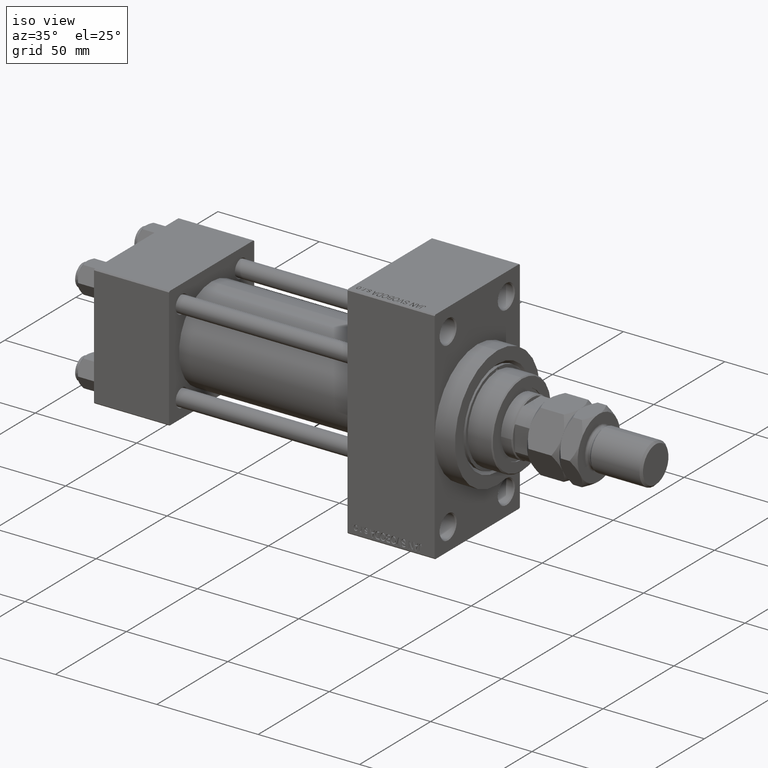
[diagram: clean part render]
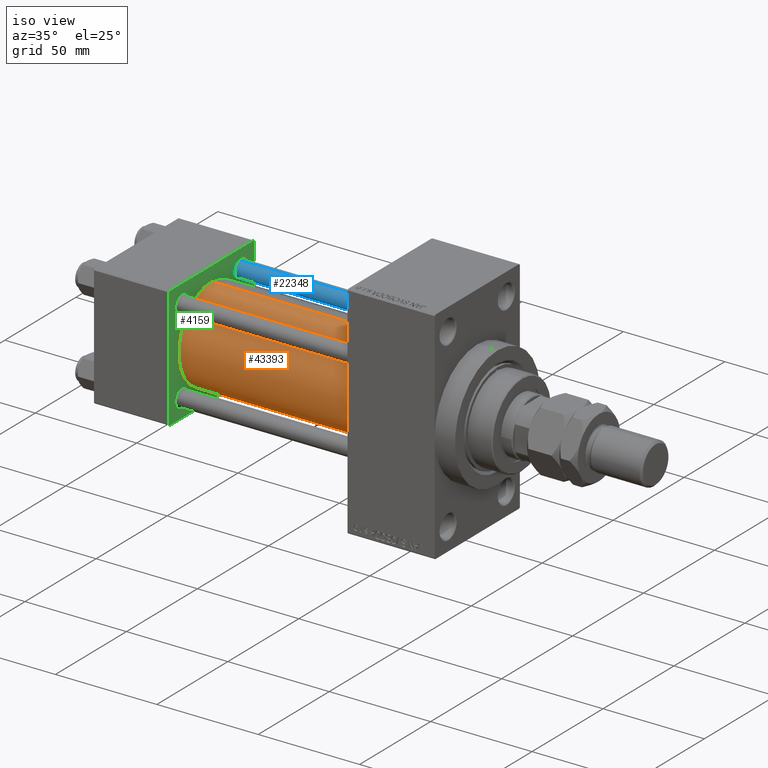
[diagram: same view with three faces highlighted in distinct colors, each labeled with its STEP entity id]
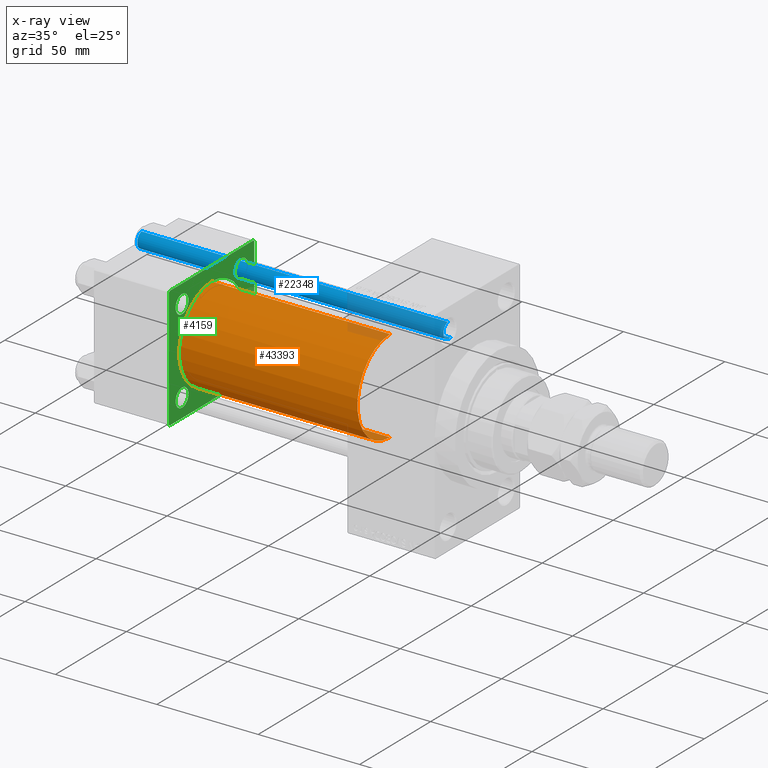
[diagram: x-ray of the same camera — body ghosted, the three highlighted faces saturated]
A machine part, iso view with three faces highlighted in distinct colors.
The next image is the same camera in x-ray (body ghosted, the three faces saturated) — at least one of them is partly hidden behind the body in this view.
Their STEP definitions:

[orange] entity #43393 — the highlighted cylindrical surface (partial cylindrical patch) has radius 23 mm, axis along (-1, -0, -0).
#454 = CIRCLE ( 'NONE', #20332, 23.00000000000000000 ) ;
#3269 = DIRECTION ( 'NONE',  ( 0.000000000000000000, 0.000000000000000000, 1.000000000000000000 ) ) ;
#3292 = ORIENTED_EDGE ( 'NONE', *, *, #3795, .F. ) ;
#3795 = EDGE_CURVE ( 'NONE', #48667, #25684, #32341, .T. ) ;
#10589 = EDGE_CURVE ( 'NONE', #29499, #46630, #17622, .T. ) ;
#13220 = ORIENTED_EDGE ( 'NONE', *, *, #41336, .T. ) ;
#13893 = CARTESIAN_POINT ( 'NONE',  ( 125.0000000000000000, -2.602085213965210642E-15, 23.00000000000000000 ) ) ;
#14229 = DIRECTION ( 'NONE',  ( -1.000000000000000000, -0.000000000000000000, -0.000000000000000000 ) ) ;
#14878 = DIRECTION ( 'NONE',  ( -1.000000000000000000, -0.000000000000000000, -0.000000000000000000 ) ) ;
#15648 = AXIS2_PLACEMENT_3D ( 'NONE', #24355, #20400, #27835 ) ;
#17460 = CYLINDRICAL_SURFACE ( 'NONE', #32259, 23.00000000000000000 ) ;
#17622 = LINE ( 'NONE', #13893, #36254 ) ;
#17966 = ORIENTED_EDGE ( 'NONE', *, *, #43605, .F. ) ;
#19822 = ORIENTED_EDGE ( 'NONE', *, *, #10589, .T. ) ;
#20332 = AXIS2_PLACEMENT_3D ( 'NONE', #47804, #21229, #40610 ) ;
#20400 = DIRECTION ( 'NONE',  ( 1.000000000000000000, 0.000000000000000000, 0.000000000000000000 ) ) ;
#21229 = DIRECTION ( 'NONE',  ( 1.000000000000000000, -0.000000000000000000, 0.000000000000000000 ) ) ;
#24355 = CARTESIAN_POINT ( 'NONE',  ( 125.0000000000000000, -2.602085213965210642E-15, 0.000000000000000000 ) ) ;
#25684 = VERTEX_POINT ( 'NONE', #40947 ) ;
#26892 = CARTESIAN_POINT ( 'NONE',  ( 125.0000000000000000, 2.146024240737016609E-16, -23.00000000000000000 ) ) ;
#27518 = CIRCLE ( 'NONE', #15648, 23.00000000000000000 ) ;
#27835 = DIRECTION ( 'NONE',  ( 0.000000000000000000, 0.000000000000000000, -1.000000000000000000 ) ) ;
#29116 = CARTESIAN_POINT ( 'NONE',  ( 125.0000000000000000, 2.146024240737016609E-16, -23.00000000000000000 ) ) ;
#29499 = VERTEX_POINT ( 'NONE', #36302 ) ;
#30145 = EDGE_LOOP ( 'NONE', ( #3292, #17966, #19822, #13220 ) ) ;
#32259 = AXIS2_PLACEMENT_3D ( 'NONE', #32596, #14229, #3269 ) ;
#32341 = LINE ( 'NONE', #29116, #39148 ) ;
#32596 = CARTESIAN_POINT ( 'NONE',  ( 125.0000000000000000, -2.602085213965210642E-15, 0.000000000000000000 ) ) ;
#33342 = FACE_OUTER_BOUND ( 'NONE', #30145, .T. ) ;
#36254 = VECTOR ( 'NONE', #44695, 1000.000000000000000 ) ;
#36302 = CARTESIAN_POINT ( 'NONE',  ( 125.0000000000000000, -2.602085213965210642E-15, 23.00000000000000000 ) ) ;
#39148 = VECTOR ( 'NONE', #14878, 1000.000000000000000 ) ;
#40496 = CARTESIAN_POINT ( 'NONE',  ( 37.00000000000000711, -2.602085213965210642E-15, 23.00000000000000000 ) ) ;
#40610 = DIRECTION ( 'NONE',  ( 0.000000000000000000, 0.000000000000000000, 1.000000000000000000 ) ) ;
#40947 = CARTESIAN_POINT ( 'NONE',  ( 37.00000000000000711, 2.146024240737016609E-16, -23.00000000000000000 ) ) ;
#41336 = EDGE_CURVE ( 'NONE', #46630, #25684, #454, .T. ) ;
#43393 = ADVANCED_FACE ( 'NONE', ( #33342 ), #17460, .T. ) ;
#43605 = EDGE_CURVE ( 'NONE', #29499, #48667, #27518, .T. ) ;
#44695 = DIRECTION ( 'NONE',  ( -1.000000000000000000, -0.000000000000000000, -0.000000000000000000 ) ) ;
#46630 = VERTEX_POINT ( 'NONE', #40496 ) ;
#47804 = CARTESIAN_POINT ( 'NONE',  ( 37.00000000000000711, -2.602085213965210642E-15, 0.000000000000000000 ) ) ;
#48667 = VERTEX_POINT ( 'NONE', #26892 ) ;

[blue] entity #22348 — the highlighted cylindrical surface (edge-blend (fillet) strip) has radius 4 mm, axis along (-1, -0, 0).
#1338 = ORIENTED_EDGE ( 'NONE', *, *, #33905, .T. ) ;
#2784 = EDGE_CURVE ( 'NONE', #29775, #34142, #8213, .T. ) ;
#4600 = DIRECTION ( 'NONE',  ( -0.000000000000000000, -0.000000000000000000, -1.000000000000000000 ) ) ;
#8059 = VERTEX_POINT ( 'NONE', #8939 ) ;
#8213 = LINE ( 'NONE', #34803, #46292 ) ;
#8939 = CARTESIAN_POINT ( 'NONE',  ( -4.000000000000000000, 0.000000000000000000, 151.5000000000000284 ) ) ;
#9083 = AXIS2_PLACEMENT_3D ( 'NONE', #28041, #17121, #46693 ) ;
#11579 = CYLINDRICAL_SURFACE ( 'NONE', #15925, 4.000000000000000000 ) ;
#13196 = CIRCLE ( 'NONE', #17136, 4.000000000000000000 ) ;
#13235 = EDGE_CURVE ( 'NONE', #8059, #30809, #49136, .T. ) ;
#15104 = CARTESIAN_POINT ( 'NONE',  ( -4.000000000000000000, 0.000000000000000000, 152.0000000000000000 ) ) ;
#15348 = DIRECTION ( 'NONE',  ( -0.000000000000000000, -0.000000000000000000, -1.000000000000000000 ) ) ;
#15559 = CARTESIAN_POINT ( 'NONE',  ( 0.000000000000000000, 0.000000000000000000, 152.0000000000000000 ) ) ;
#15657 = CARTESIAN_POINT ( 'NONE',  ( 0.000000000000000000, 0.000000000000000000, 151.5000000000000284 ) ) ;
#15925 = AXIS2_PLACEMENT_3D ( 'NONE', #15559, #4600, #22496 ) ;
#17121 = DIRECTION ( 'NONE',  ( -0.000000000000000000, -0.000000000000000000, 1.000000000000000000 ) ) ;
#17136 = AXIS2_PLACEMENT_3D ( 'NONE', #15657, #30556, #34286 ) ;
#22348 = ADVANCED_FACE ( 'NONE', ( #41640 ), #11579, .T. ) ;
#22496 = DIRECTION ( 'NONE',  ( -1.000000000000000000, 0.000000000000000000, 0.000000000000000000 ) ) ;
#22917 = ORIENTED_EDGE ( 'NONE', *, *, #13235, .T. ) ;
#23364 = DIRECTION ( 'NONE',  ( -0.000000000000000000, -0.000000000000000000, -1.000000000000000000 ) ) ;
#28041 = CARTESIAN_POINT ( 'NONE',  ( 0.000000000000000000, 0.000000000000000000, 0.5000000000000281997 ) ) ;
#29775 = VERTEX_POINT ( 'NONE', #35997 ) ;
#30556 = DIRECTION ( 'NONE',  ( 0.000000000000000000, 0.000000000000000000, -1.000000000000000000 ) ) ;
#30809 = VERTEX_POINT ( 'NONE', #44672 ) ;
#33905 = EDGE_CURVE ( 'NONE', #30809, #34142, #48733, .T. ) ;
#34142 = VERTEX_POINT ( 'NONE', #45413 ) ;
#34286 = DIRECTION ( 'NONE',  ( 1.000000000000000000, 0.000000000000000000, 0.000000000000000000 ) ) ;
#34803 = CARTESIAN_POINT ( 'NONE',  ( 4.000000000000000000, 4.898587196589412829E-16, 152.0000000000000000 ) ) ;
#35997 = CARTESIAN_POINT ( 'NONE',  ( 4.000000000000000000, 4.898587196589412829E-16, 151.5000000000000284 ) ) ;
#37740 = EDGE_CURVE ( 'NONE', #29775, #8059, #13196, .T. ) ;
#38472 = ORIENTED_EDGE ( 'NONE', *, *, #37740, .T. ) ;
#41640 = FACE_OUTER_BOUND ( 'NONE', #45527, .T. ) ;
#44672 = CARTESIAN_POINT ( 'NONE',  ( -4.000000000000000000, 0.000000000000000000, 0.5000000000000281997 ) ) ;
#45049 = VECTOR ( 'NONE', #15348, 1000.000000000000000 ) ;
#45413 = CARTESIAN_POINT ( 'NONE',  ( 4.000000000000000000, 4.898587196589412829E-16, 0.5000000000000281997 ) ) ;
#45527 = EDGE_LOOP ( 'NONE', ( #46769, #38472, #22917, #1338 ) ) ;
#46292 = VECTOR ( 'NONE', #23364, 1000.000000000000000 ) ;
#46693 = DIRECTION ( 'NONE',  ( 1.000000000000000000, 0.000000000000000000, 0.000000000000000000 ) ) ;
#46769 = ORIENTED_EDGE ( 'NONE', *, *, #2784, .F. ) ;
#48733 = CIRCLE ( 'NONE', #9083, 4.000000000000000000 ) ;
#49136 = LINE ( 'NONE', #15104, #45049 ) ;

[green] entity #4159 — the highlighted planar face has unit normal (-1, 0, 0).
#126 = DIRECTION ( 'NONE',  ( -1.000000000000000000, 0.000000000000000000, -0.000000000000000000 ) ) ;
#308 = AXIS2_PLACEMENT_3D ( 'NONE', #9870, #17814, #37425 ) ;
#386 = VECTOR ( 'NONE', #7639, 1000.000000000000114 ) ;
#454 = CIRCLE ( 'NONE', #20332, 23.00000000000000000 ) ;
#837 = DIRECTION ( 'NONE',  ( 0.000000000000000000, 0.000000000000000000, 1.000000000000000000 ) ) ;
#2151 = CARTESIAN_POINT ( 'NONE',  ( 37.00000000000000000, -30.00000000000000000, -29.50000000000001776 ) ) ;
#2273 = DIRECTION ( 'NONE',  ( 0.000000000000000000, 0.000000000000000000, 1.000000000000000000 ) ) ;
#2644 = FACE_BOUND ( 'NONE', #5111, .T. ) ;
#2676 = ORIENTED_EDGE ( 'NONE', *, *, #39598, .T. ) ;
#2876 = DIRECTION ( 'NONE',  ( -1.000000000000000000, 0.000000000000000000, -0.000000000000000000 ) ) ;
#2885 = VERTEX_POINT ( 'NONE', #42744 ) ;
#2896 = ORIENTED_EDGE ( 'NONE', *, *, #18037, .F. ) ;
#3350 = CARTESIAN_POINT ( 'NONE',  ( 37.00000000000000000, -30.00000000000000000, 29.99999999999999289 ) ) ;
#3584 = ORIENTED_EDGE ( 'NONE', *, *, #13766, .T. ) ;
#4063 = EDGE_CURVE ( 'NONE', #27546, #8178, #5646, .T. ) ;
#4159 = ADVANCED_FACE ( 'NONE', ( #22265, #2644, #40681, #36455, #14822, #28986 ), #44650, .F. ) ;
#5111 = EDGE_LOOP ( 'NONE', ( #11074, #19853 ) ) ;
#5159 = CIRCLE ( 'NONE', #38480, 4.500000000000031974 ) ;
#5199 = EDGE_CURVE ( 'NONE', #18218, #18422, #14646, .T. ) ;
#5646 = LINE ( 'NONE', #17329, #14578 ) ;
#5736 = ORIENTED_EDGE ( 'NONE', *, *, #17514, .F. ) ;
#6056 = ORIENTED_EDGE ( 'NONE', *, *, #33199, .T. ) ;
#6232 = VECTOR ( 'NONE', #19123, 1000.000000000000000 ) ;
#6255 = EDGE_CURVE ( 'NONE', #27546, #41773, #41927, .T. ) ;
#6351 = EDGE_LOOP ( 'NONE', ( #16094, #34850 ) ) ;
#6601 = DIRECTION ( 'NONE',  ( 0.000000000000000000, 0.000000000000000000, 1.000000000000000000 ) ) ;
#7500 = EDGE_LOOP ( 'NONE', ( #2896, #6056, #19459, #33082, #30939, #30021, #3584, #30487 ) ) ;
#7639 = DIRECTION ( 'NONE',  ( 0.000000000000000000, -0.7071067811865474617, 0.7071067811865474617 ) ) ;
#7824 = DIRECTION ( 'NONE',  ( -1.000000000000000000, 0.000000000000000000, -0.000000000000000000 ) ) ;
#7887 = CARTESIAN_POINT ( 'NONE',  ( 37.00000000000000000, 29.49999999999999289, 30.00000000000000000 ) ) ;
#7902 = VERTEX_POINT ( 'NONE', #33073 ) ;
#8121 = CARTESIAN_POINT ( 'NONE',  ( 37.00000000000000000, -20.84999999999999076, 25.35000000000003695 ) ) ;
#8178 = VERTEX_POINT ( 'NONE', #29037 ) ;
#8578 = EDGE_CURVE ( 'NONE', #30997, #2885, #44905, .T. ) ;
#8629 = DIRECTION ( 'NONE',  ( 0.000000000000000000, -1.000000000000000000, -1.156482317317871725E-16 ) ) ;
#8712 = CARTESIAN_POINT ( 'NONE',  ( 37.00000000000000000, 20.84999999999999787, 25.35000000000003340 ) ) ;
#8869 = CARTESIAN_POINT ( 'NONE',  ( 37.00000000000000000, 20.84999999999999787, 20.85000000000000142 ) ) ;
#9736 = DIRECTION ( 'NONE',  ( -1.000000000000000000, 0.000000000000000000, -0.000000000000000000 ) ) ;
#9870 = CARTESIAN_POINT ( 'NONE',  ( 37.00000000000000000, 0.000000000000000000, 0.000000000000000000 ) ) ;
#9942 = EDGE_CURVE ( 'NONE', #39998, #45390, #16523, .T. ) ;
#10723 = AXIS2_PLACEMENT_3D ( 'NONE', #36326, #9736, #2273 ) ;
#11074 = ORIENTED_EDGE ( 'NONE', *, *, #22385, .T. ) ;
#11547 = CARTESIAN_POINT ( 'NONE',  ( 37.00000000000000000, -20.84999999999999076, 20.85000000000000497 ) ) ;
#11867 = CARTESIAN_POINT ( 'NONE',  ( 37.00000000000000000, 29.99999999999999289, 30.00000000000000000 ) ) ;
#11907 = DIRECTION ( 'NONE',  ( -0.000000000000000000, -0.7071067811865474617, -0.7071067811865474617 ) ) ;
#12392 = LINE ( 'NONE', #42449, #45370 ) ;
#12439 = EDGE_LOOP ( 'NONE', ( #42576, #41075 ) ) ;
#13324 = DIRECTION ( 'NONE',  ( 0.000000000000000000, 0.000000000000000000, 1.000000000000000000 ) ) ;
#13596 = DIRECTION ( 'NONE',  ( 0.000000000000000000, 0.000000000000000000, -1.000000000000000000 ) ) ;
#13766 = EDGE_CURVE ( 'NONE', #27566, #39998, #37157, .T. ) ;
#13874 = ORIENTED_EDGE ( 'NONE', *, *, #41336, .F. ) ;
#14578 = VECTOR ( 'NONE', #13596, 1000.000000000000000 ) ;
#14646 = CIRCLE ( 'NONE', #48764, 4.500000000000031974 ) ;
#14822 = FACE_BOUND ( 'NONE', #48579, .T. ) ;
#15108 = AXIS2_PLACEMENT_3D ( 'NONE', #34184, #126, #15303 ) ;
#15303 = DIRECTION ( 'NONE',  ( 0.000000000000000000, 0.000000000000000000, 1.000000000000000000 ) ) ;
#15989 = CARTESIAN_POINT ( 'NONE',  ( 37.00000000000000000, -30.00000000000000000, 29.49999999999999289 ) ) ;
#16094 = ORIENTED_EDGE ( 'NONE', *, *, #35897, .T. ) ;
#16320 = DIRECTION ( 'NONE',  ( -0.000000000000000000, 0.7071067811865574537, 0.7071067811865376918 ) ) ;
#16523 = LINE ( 'NONE', #45862, #28293 ) ;
#16535 = VECTOR ( 'NONE', #26962, 1000.000000000000000 ) ;
#16707 = CIRCLE ( 'NONE', #15108, 4.500000000000031974 ) ;
#17254 = CARTESIAN_POINT ( 'NONE',  ( 37.00000000000000000, 20.84999999999999787, -16.34999999999996945 ) ) ;
#17329 = CARTESIAN_POINT ( 'NONE',  ( 37.00000000000000000, 29.99999999999999289, 30.00000000000000000 ) ) ;
#17514 = EDGE_CURVE ( 'NONE', #25684, #46630, #33186, .T. ) ;
#17814 = DIRECTION ( 'NONE',  ( -1.000000000000000000, 0.000000000000000000, -0.000000000000000000 ) ) ;
#18037 = EDGE_CURVE ( 'NONE', #48577, #45390, #18870, .T. ) ;
#18068 = CARTESIAN_POINT ( 'NONE',  ( 37.00000000000000000, -20.84999999999999076, 20.85000000000000497 ) ) ;
#18218 = VERTEX_POINT ( 'NONE', #29726 ) ;
#18422 = VERTEX_POINT ( 'NONE', #48072 ) ;
#18870 = LINE ( 'NONE', #22575, #6232 ) ;
#19123 = DIRECTION ( 'NONE',  ( 0.000000000000000000, -1.000000000000000000, -1.156482317317871725E-16 ) ) ;
#19459 = ORIENTED_EDGE ( 'NONE', *, *, #4063, .F. ) ;
#19853 = ORIENTED_EDGE ( 'NONE', *, *, #34376, .T. ) ;
#20332 = AXIS2_PLACEMENT_3D ( 'NONE', #47804, #21229, #40610 ) ;
#21229 = DIRECTION ( 'NONE',  ( 1.000000000000000000, -0.000000000000000000, 0.000000000000000000 ) ) ;
#21912 = VECTOR ( 'NONE', #8629, 1000.000000000000000 ) ;
#22265 = FACE_BOUND ( 'NONE', #44874, .T. ) ;
#22385 = EDGE_CURVE ( 'NONE', #40154, #39431, #16707, .T. ) ;
#22575 = CARTESIAN_POINT ( 'NONE',  ( 37.00000000000000000, 29.99999999999999289, -30.00000000000000000 ) ) ;
#22700 = CARTESIAN_POINT ( 'NONE',  ( 37.00000000000000000, 29.99999999999999289, 29.50000000000000000 ) ) ;
#22871 = AXIS2_PLACEMENT_3D ( 'NONE', #48259, #44032, #25627 ) ;
#23061 = VERTEX_POINT ( 'NONE', #8712 ) ;
#24890 = VECTOR ( 'NONE', #16320, 999.9999999999998863 ) ;
#25627 = DIRECTION ( 'NONE',  ( 0.000000000000000000, 0.000000000000000000, 1.000000000000000000 ) ) ;
#25684 = VERTEX_POINT ( 'NONE', #40947 ) ;
#26413 = DIRECTION ( 'NONE',  ( -1.000000000000000000, 0.000000000000000000, -0.000000000000000000 ) ) ;
#26962 = DIRECTION ( 'NONE',  ( 0.000000000000000000, 0.000000000000000000, -1.000000000000000000 ) ) ;
#27477 = CIRCLE ( 'NONE', #46530, 4.500000000000031974 ) ;
#27546 = VERTEX_POINT ( 'NONE', #22700 ) ;
#27566 = VERTEX_POINT ( 'NONE', #15989 ) ;
#27942 = EDGE_CURVE ( 'NONE', #29727, #27566, #12392, .T. ) ;
#27969 = CARTESIAN_POINT ( 'NONE',  ( 37.00000000000000000, 29.99999999999999289, -29.50000000000000000 ) ) ;
#28293 = VECTOR ( 'NONE', #31669, 1000.000000000000114 ) ;
#28986 = FACE_OUTER_BOUND ( 'NONE', #7500, .T. ) ;
#29037 = CARTESIAN_POINT ( 'NONE',  ( 37.00000000000000000, 29.99999999999999289, -29.50000000000000000 ) ) ;
#29726 = CARTESIAN_POINT ( 'NONE',  ( 37.00000000000000000, -20.84999999999999076, -25.35000000000003695 ) ) ;
#29727 = VERTEX_POINT ( 'NONE', #31289 ) ;
#29822 = AXIS2_PLACEMENT_3D ( 'NONE', #11547, #7824, #837 ) ;
#30021 = ORIENTED_EDGE ( 'NONE', *, *, #27942, .T. ) ;
#30487 = ORIENTED_EDGE ( 'NONE', *, *, #9942, .T. ) ;
#30939 = ORIENTED_EDGE ( 'NONE', *, *, #38066, .T. ) ;
#30997 = VERTEX_POINT ( 'NONE', #8121 ) ;
#31289 = CARTESIAN_POINT ( 'NONE',  ( 37.00000000000000000, -29.49999999999998579, 29.99999999999999289 ) ) ;
#31669 = DIRECTION ( 'NONE',  ( 0.000000000000000000, 0.7071067811865474617, -0.7071067811865474617 ) ) ;
#32685 = ORIENTED_EDGE ( 'NONE', *, *, #5199, .T. ) ;
#33073 = CARTESIAN_POINT ( 'NONE',  ( 37.00000000000000000, 20.84999999999999787, 16.34999999999996945 ) ) ;
#33082 = ORIENTED_EDGE ( 'NONE', *, *, #6255, .T. ) ;
#33186 = CIRCLE ( 'NONE', #22871, 23.00000000000000000 ) ;
#33199 = EDGE_CURVE ( 'NONE', #48577, #8178, #46377, .T. ) ;
#33451 = DIRECTION ( 'NONE',  ( -1.000000000000000000, 0.000000000000000000, -0.000000000000000000 ) ) ;
#34184 = CARTESIAN_POINT ( 'NONE',  ( 37.00000000000000000, 20.84999999999999787, -20.85000000000000142 ) ) ;
#34376 = EDGE_CURVE ( 'NONE', #39431, #40154, #43228, .T. ) ;
#34616 = DIRECTION ( 'NONE',  ( 0.000000000000000000, 0.000000000000000000, 1.000000000000000000 ) ) ;
#34850 = ORIENTED_EDGE ( 'NONE', *, *, #38218, .T. ) ;
#35897 = EDGE_CURVE ( 'NONE', #7902, #23061, #41680, .T. ) ;
#36326 = CARTESIAN_POINT ( 'NONE',  ( 37.00000000000000000, 20.84999999999999787, 20.85000000000000142 ) ) ;
#36434 = CARTESIAN_POINT ( 'NONE',  ( 37.00000000000000000, 20.84999999999999787, -20.85000000000000142 ) ) ;
#36455 = FACE_BOUND ( 'NONE', #6351, .T. ) ;
#37157 = LINE ( 'NONE', #3350, #16535 ) ;
#37425 = DIRECTION ( 'NONE',  ( -0.000000000000000000, 0.000000000000000000, 1.000000000000000000 ) ) ;
#37493 = CARTESIAN_POINT ( 'NONE',  ( 37.00000000000000000, -20.84999999999999076, -20.85000000000000497 ) ) ;
#37960 = LINE ( 'NONE', #11867, #21912 ) ;
#38066 = EDGE_CURVE ( 'NONE', #41773, #29727, #37960, .T. ) ;
#38218 = EDGE_CURVE ( 'NONE', #23061, #7902, #39261, .T. ) ;
#38480 = AXIS2_PLACEMENT_3D ( 'NONE', #49026, #26413, #34616 ) ;
#38558 = AXIS2_PLACEMENT_3D ( 'NONE', #8869, #40157, #13324 ) ;
#39261 = CIRCLE ( 'NONE', #38558, 4.500000000000031974 ) ;
#39431 = VERTEX_POINT ( 'NONE', #17254 ) ;
#39598 = EDGE_CURVE ( 'NONE', #18422, #18218, #5159, .T. ) ;
#39998 = VERTEX_POINT ( 'NONE', #2151 ) ;
#40053 = AXIS2_PLACEMENT_3D ( 'NONE', #36434, #2876, #6601 ) ;
#40154 = VERTEX_POINT ( 'NONE', #42136 ) ;
#40157 = DIRECTION ( 'NONE',  ( -1.000000000000000000, 0.000000000000000000, -0.000000000000000000 ) ) ;
#40496 = CARTESIAN_POINT ( 'NONE',  ( 37.00000000000000711, -2.602085213965210642E-15, 23.00000000000000000 ) ) ;
#40610 = DIRECTION ( 'NONE',  ( 0.000000000000000000, 0.000000000000000000, 1.000000000000000000 ) ) ;
#40681 = FACE_BOUND ( 'NONE', #12439, .T. ) ;
#40947 = CARTESIAN_POINT ( 'NONE',  ( 37.00000000000000711, 2.146024240737016609E-16, -23.00000000000000000 ) ) ;
#40995 = DIRECTION ( 'NONE',  ( 0.000000000000000000, 0.000000000000000000, 1.000000000000000000 ) ) ;
#41075 = ORIENTED_EDGE ( 'NONE', *, *, #8578, .T. ) ;
#41336 = EDGE_CURVE ( 'NONE', #46630, #25684, #454, .T. ) ;
#41475 = DIRECTION ( 'NONE',  ( -1.000000000000000000, 0.000000000000000000, -0.000000000000000000 ) ) ;
#41680 = CIRCLE ( 'NONE', #10723, 4.500000000000031974 ) ;
#41773 = VERTEX_POINT ( 'NONE', #46173 ) ;
#41927 = LINE ( 'NONE', #7887, #386 ) ;
#41989 = EDGE_CURVE ( 'NONE', #2885, #30997, #27477, .T. ) ;
#42136 = CARTESIAN_POINT ( 'NONE',  ( 37.00000000000000000, 20.84999999999999787, -25.35000000000003340 ) ) ;
#42449 = CARTESIAN_POINT ( 'NONE',  ( 37.00000000000000000, -30.00000000000000000, 29.49999999999999289 ) ) ;
#42576 = ORIENTED_EDGE ( 'NONE', *, *, #41989, .T. ) ;
#42744 = CARTESIAN_POINT ( 'NONE',  ( 37.00000000000000000, -20.84999999999999076, 16.34999999999997300 ) ) ;
#43228 = CIRCLE ( 'NONE', #40053, 4.500000000000031974 ) ;
#44032 = DIRECTION ( 'NONE',  ( 1.000000000000000000, -0.000000000000000000, 0.000000000000000000 ) ) ;
#44150 = DIRECTION ( 'NONE',  ( 0.000000000000000000, 0.000000000000000000, 1.000000000000000000 ) ) ;
#44650 = PLANE ( 'NONE',  #308 ) ;
#44796 = CARTESIAN_POINT ( 'NONE',  ( 37.00000000000000000, 29.49999999999997868, -30.00000000000000000 ) ) ;
#44874 = EDGE_LOOP ( 'NONE', ( #32685, #2676 ) ) ;
#44905 = CIRCLE ( 'NONE', #29822, 4.500000000000031974 ) ;
#45370 = VECTOR ( 'NONE', #11907, 1000.000000000000114 ) ;
#45390 = VERTEX_POINT ( 'NONE', #47210 ) ;
#45862 = CARTESIAN_POINT ( 'NONE',  ( 37.00000000000000000, -29.50000000000001066, -30.00000000000000711 ) ) ;
#46173 = CARTESIAN_POINT ( 'NONE',  ( 37.00000000000000000, 29.49999999999999289, 30.00000000000000000 ) ) ;
#46377 = LINE ( 'NONE', #27969, #24890 ) ;
#46530 = AXIS2_PLACEMENT_3D ( 'NONE', #18068, #33451, #44150 ) ;
#46630 = VERTEX_POINT ( 'NONE', #40496 ) ;
#47210 = CARTESIAN_POINT ( 'NONE',  ( 37.00000000000000000, -29.50000000000000000, -30.00000000000000711 ) ) ;
#47804 = CARTESIAN_POINT ( 'NONE',  ( 37.00000000000000711, -2.602085213965210642E-15, 0.000000000000000000 ) ) ;
#48072 = CARTESIAN_POINT ( 'NONE',  ( 37.00000000000000000, -20.84999999999999076, -16.34999999999997300 ) ) ;
#48259 = CARTESIAN_POINT ( 'NONE',  ( 37.00000000000000711, -2.602085213965210642E-15, 0.000000000000000000 ) ) ;
#48577 = VERTEX_POINT ( 'NONE', #44796 ) ;
#48579 = EDGE_LOOP ( 'NONE', ( #13874, #5736 ) ) ;
#48764 = AXIS2_PLACEMENT_3D ( 'NONE', #37493, #41475, #40995 ) ;
#49026 = CARTESIAN_POINT ( 'NONE',  ( 37.00000000000000000, -20.84999999999999076, -20.85000000000000497 ) ) ;